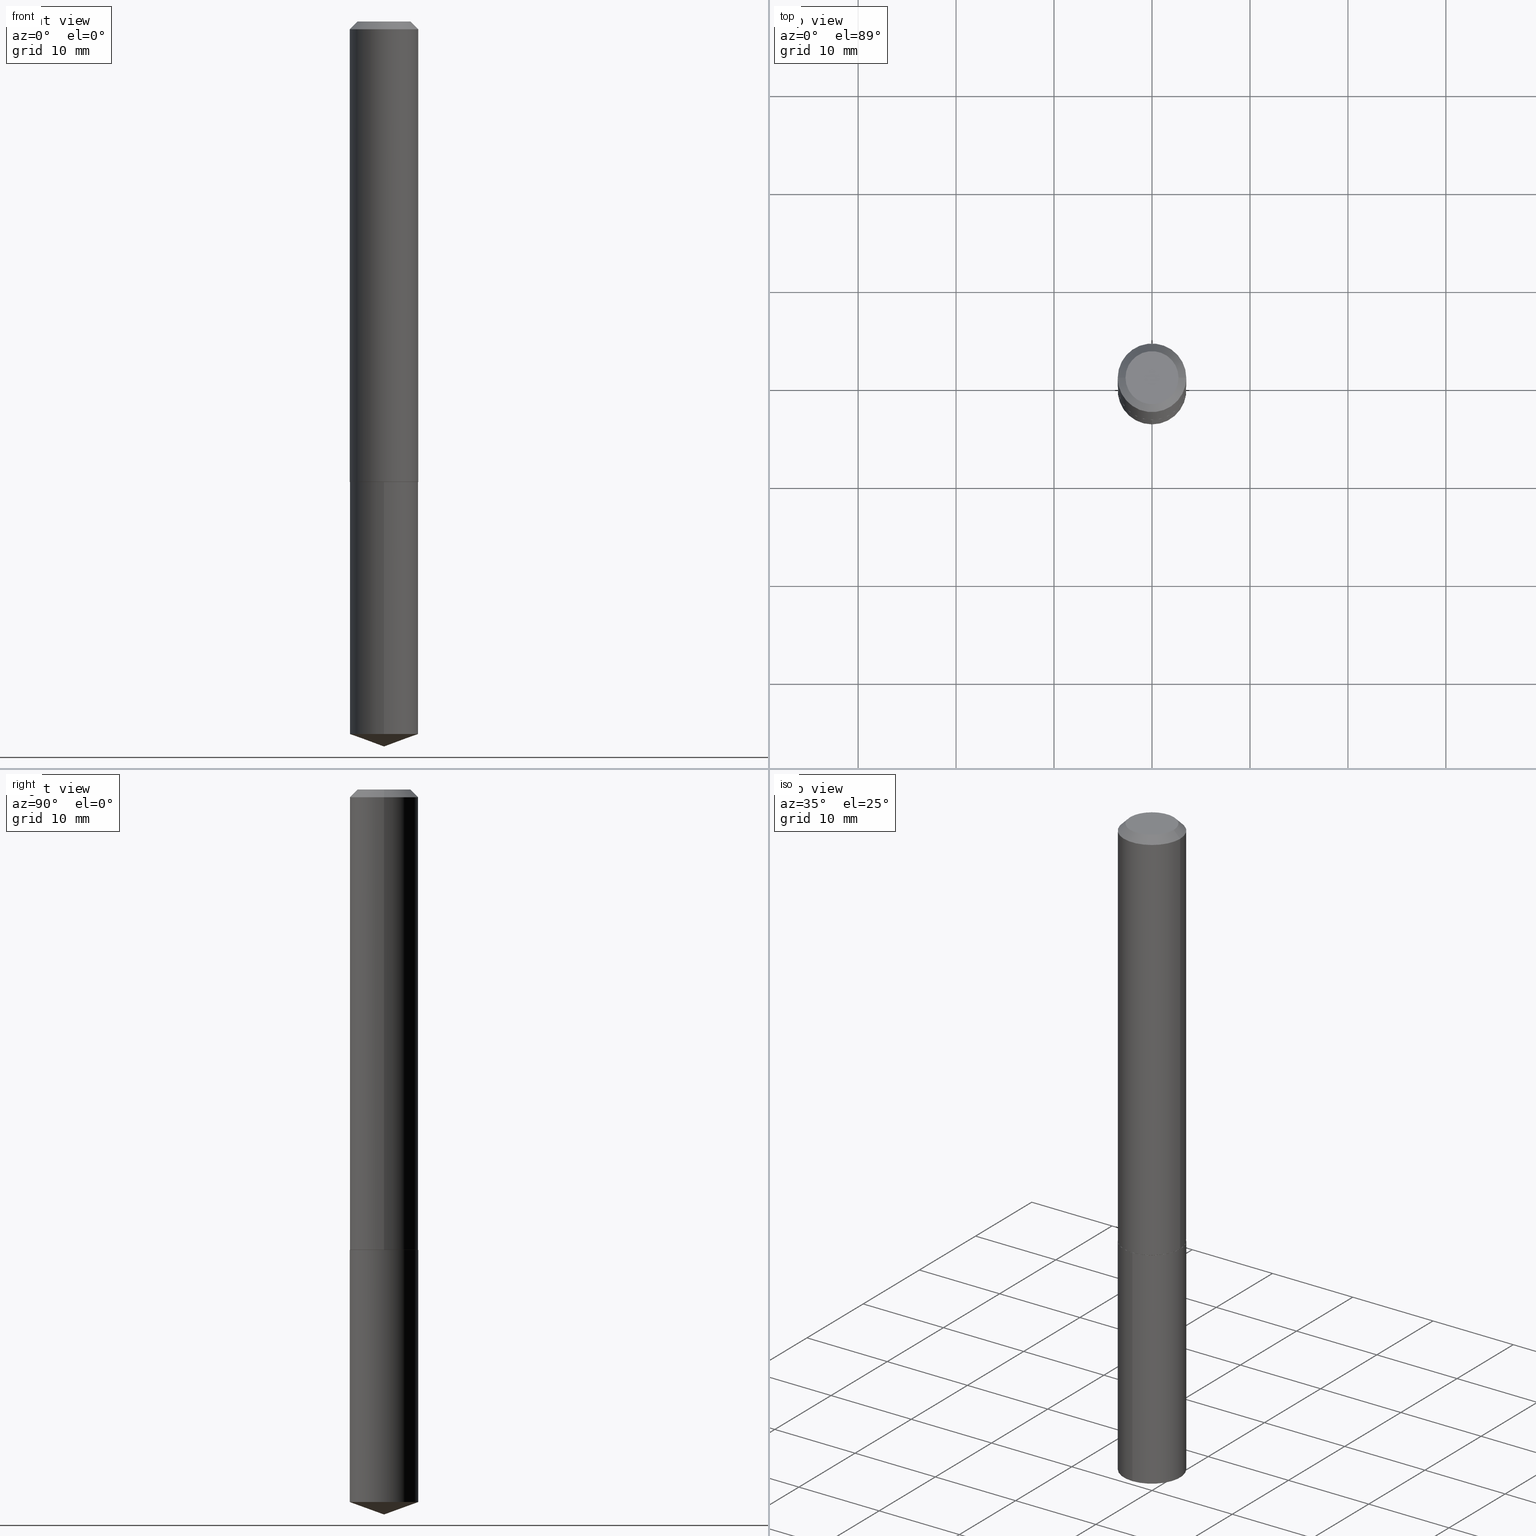
[diagram: canonical four-view strip — front | top / right | iso, engineering-drawing reading convention]
A machine part, canonical four-view strip (front | top / right | iso — engineering-drawing reading convention). The complete STEP part file that produces these views, byte-faithful:
ISO-10303-21;
HEADER;
FILE_DESCRIPTION (( 'STEP AP203' ),
    '1' );
FILE_NAME ('66024.STEP',
    '2024-04-23T12:17:47',
    ( '' ),
    ( '' ),
    'SwSTEP 2.0',
    'SolidWorks 2023',
    '' );
FILE_SCHEMA (( 'CONFIG_CONTROL_DESIGN' ));
ENDSEC;

DATA;
#1 = CIRCLE ( 'NONE', #181, 0.1378000000000000058 ) ;
#2 = CARTESIAN_POINT ( 'NONE',  ( 0.1378000000000001446, -9.622522569851684631E-16, 6.719371597046805543E-30 ) ) ;
#3 = PRODUCT_RELATED_PRODUCT_CATEGORY ( 'detail', '', ( #312 ) ) ;
#4 = CARTESIAN_POINT ( 'NONE',  ( 7.123037675848924175E-29, -1.017436034148602291E-14, -2.913400000000000212 ) ) ;
#5 = PLANE ( 'NONE',  #102 ) ;
#6 = DESIGN_CONTEXT ( 'detailed design', #246, 'design' ) ;
#7 = FACE_OUTER_BOUND ( 'NONE', #274, .T. ) ;
#8 = AXIS2_PLACEMENT_3D ( 'NONE', #244, #201, #329 ) ;
#9 = EDGE_CURVE ( 'NONE', #267, #35, #234, .T. ) ;
#10 = CARTESIAN_POINT ( 'NONE',  ( 9.791278898774879117E-16, 0.1377999999999900138, -2.863244901718118296 ) ) ;
#11 = ORIENTED_EDGE ( 'NONE', *, *, #320, .T. ) ;
#12 = ORIENTED_EDGE ( 'NONE', *, *, #157, .T. ) ;
#13 = VECTOR ( 'NONE', #237, 39.37007874015748143 ) ;
#14 = VERTEX_POINT ( 'NONE', #168 ) ;
#15 = VECTOR ( 'NONE', #228, 39.37007874015748143 ) ;
#16 = CONICAL_SURFACE ( 'NONE', #370, 0.1378000000000000058, 0.7853981633974450594 ) ;
#17 = PRODUCT_DEFINITION_FORMATION_WITH_SPECIFIED_SOURCE ( 'ANY', '', #312, .NOT_KNOWN. ) ;
#18 = APPROVAL_DATE_TIME ( #161, #179 ) ;
#19 = FACE_OUTER_BOUND ( 'NONE', #98, .T. ) ;
#20 = COORDINATED_UNIVERSAL_TIME_OFFSET ( 5, 0, .BEHIND. ) ;
#21 = EDGE_LOOP ( 'NONE', ( #371, #374, #327, #11 ) ) ;
#22 = ADVANCED_FACE ( 'NONE', ( #19 ), #346, .T. ) ;
#23 = CIRCLE ( 'NONE', #145, 0.1378000000000000058 ) ;
#24 = CALENDAR_DATE ( 2024, 23, 4 ) ;
#25 = DIRECTION ( 'NONE',  ( -2.445468806185136597E-29, 3.491481338843145583E-15, 1.000000000000000000 ) ) ;
#26 = APPROVAL_STATUS ( 'not_yet_approved' ) ;
#27 = FACE_OUTER_BOUND ( 'NONE', #73, .T. ) ;
#28 = ORIENTED_EDGE ( 'NONE', *, *, #217, .F. ) ;
#29 = CARTESIAN_POINT ( 'NONE',  ( 7.642090019328599159E-31, -1.091087918388489774E-16, -0.03125000000000019429 ) ) ;
#30 = CARTESIAN_POINT ( 'NONE',  ( 4.525095478964976833E-29, -6.460637069395356787E-15, -1.850400000000000045 ) ) ;
#31 = AXIS2_PLACEMENT_3D ( 'NONE', #359, #57, #174 ) ;
#32 = DIRECTION ( 'NONE',  ( -2.445468806185136597E-29, 3.491481338843145583E-15, 1.000000000000000000 ) ) ;
#33 = CC_DESIGN_DATE_AND_TIME_ASSIGNMENT ( #72, #257, ( #272 ) ) ;
#34 = FACE_OUTER_BOUND ( 'NONE', #70, .T. ) ;
#35 = VERTEX_POINT ( 'NONE', #172 ) ;
#36 = FACE_OUTER_BOUND ( 'NONE', #341, .T. ) ;
#37 = CARTESIAN_POINT ( 'NONE',  ( 0.1378000000000000058, -1.054485415931766154E-15, -0.03125000000000019429 ) ) ;
#38 = ADVANCED_FACE ( 'NONE', ( #266 ), #330, .T. ) ;
#39 = DIRECTION ( 'NONE',  ( -6.982962677686265922E-15, -1.000000000000000000, 3.964946289788480896E-15 ) ) ;
#40 = DIRECTION ( 'NONE',  ( 1.000000000000000000, -6.982962677686265922E-15, 4.876176775795935232E-29 ) ) ;
#41 = ORIENTED_EDGE ( 'NONE', *, *, #227, .F. ) ;
#42 = CC_DESIGN_PERSON_AND_ORGANIZATION_ASSIGNMENT ( #96, #97, ( #17 ) ) ;
#43 = ORIENTED_EDGE ( 'NONE', *, *, #71, .F. ) ;
#44 = ADVANCED_FACE ( 'NONE', ( #196 ), #389, .T. ) ;
#45 = DIRECTION ( 'NONE',  ( -2.444922659383854649E-29, 3.492263452147326166E-15, 1.000000000000000000 ) ) ;
#46 = APPROVAL_DATE_TIME ( #55, #252 ) ;
#47 = EDGE_LOOP ( 'NONE', ( #100, #212, #56, #154 ) ) ;
#48 = LINE ( 'NONE', #131, #149 ) ;
#49 = CARTESIAN_POINT ( 'NONE',  ( -0.1378000000000001446, 9.791278898774190835E-16, -6.778292554371267040E-30 ) ) ;
#50 = DIRECTION ( 'NONE',  ( -1.000000000000000000, 6.982962677686265922E-15, -4.876176775795935793E-29 ) ) ;
#51 = EDGE_CURVE ( 'NONE', #68, #170, #134, .T. ) ;
#52 = DATE_AND_TIME ( #186, #235 ) ;
#53 = ORIENTED_EDGE ( 'NONE', *, *, #204, .T. ) ;
#54 = VECTOR ( 'NONE', #344, 39.37007874015748854 ) ;
#55 = DATE_AND_TIME ( #387, #340 ) ;
#56 = ORIENTED_EDGE ( 'NONE', *, *, #238, .F. ) ;
#57 = DIRECTION ( 'NONE',  ( 2.445468806185136597E-29, -3.491481338843145583E-15, -1.000000000000000000 ) ) ;
#58 = EDGE_CURVE ( 'NONE', #267, #170, #311, .T. ) ;
#59 = DIRECTION ( 'NONE',  ( -2.444922659383854929E-29, 3.492263452147326560E-15, 1.000000000000000000 ) ) ;
#60 = CIRCLE ( 'NONE', #95, 0.1378000000000002279 ) ;
#61 = CC_DESIGN_APPROVAL ( #179, ( #138 ) ) ;
#62 = DIRECTION ( 'NONE',  ( -2.445468806185136597E-29, 3.491481338843145583E-15, 1.000000000000000000 ) ) ;
#63 = CARTESIAN_POINT ( 'NONE',  ( 7.001422929617015840E-29, -9.997758302359288598E-15, -2.863244901718117408 ) ) ;
#64 = DIRECTION ( 'NONE',  ( 1.000000000000000000, -6.982962677686267499E-15, 0.000000000000000000 ) ) ;
#65 = DIRECTION ( 'NONE',  ( 0.7071067811865452413, -7.319954787623248157E-15, -0.7071067811865497932 ) ) ;
#66 = DIRECTION ( 'NONE',  ( 0.000000000000000000, 0.000000000000000000, 1.000000000000000000 ) ) ;
#67 = AXIS2_PLACEMENT_3D ( 'NONE', #290, #258, #381 ) ;
#68 = VERTEX_POINT ( 'NONE', #112 ) ;
#69 = VECTOR ( 'NONE', #117, 39.37007874015748143 ) ;
#70 = EDGE_LOOP ( 'NONE', ( #355, #379, #358, #124 ) ) ;
#71 = EDGE_CURVE ( 'NONE', #170, #267, #60, .T. ) ;
#72 = DATE_AND_TIME ( #24, #75 ) ;
#73 = EDGE_LOOP ( 'NONE', ( #261, #152 ) ) ;
#74 = CARTESIAN_POINT ( 'NONE',  ( 4.523872744561884592E-29, -6.458891328725935284E-15, -1.849900000000000100 ) ) ;
#75 = LOCAL_TIME ( 8, 17, 47.00000000000000000, #185 ) ;
#76 = PERSON_AND_ORGANIZATION_ROLE ( 'creator' ) ;
#77 = ORIENTED_EDGE ( 'NONE', *, *, #58, .F. ) ;
#78 = CALENDAR_DATE ( 2024, 23, 4 ) ;
#79 = CARTESIAN_POINT ( 'NONE',  ( -0.1378000000000002279, -5.479763438848515411E-15, -1.849900000000000100 ) ) ;
#80 = DIRECTION ( 'NONE',  ( 1.000000000000000000, -6.982962677686269077E-15, 0.000000000000000000 ) ) ;
#81 = DIRECTION ( 'NONE',  ( -2.444922659383854929E-29, 3.492263452147326560E-15, 1.000000000000000000 ) ) ;
#82 = CARTESIAN_POINT ( 'NONE',  ( 4.523872744561884592E-29, -6.458891328725935284E-15, -1.849900000000000100 ) ) ;
#83 = LINE ( 'NONE', #240, #69 ) ;
#84 = LINE ( 'NONE', #365, #128 ) ;
#85 = VECTOR ( 'NONE', #317, 39.37007874015748143 ) ;
#86 = CC_DESIGN_PERSON_AND_ORGANIZATION_ASSIGNMENT ( #182, #158, ( #312 ) ) ;
#87 = APPROVAL_PERSON_ORGANIZATION ( #281, #252, #293 ) ;
#88 = DIRECTION ( 'NONE',  ( -6.982962677686265922E-15, -1.000000000000000000, 3.964946289788480896E-15 ) ) ;
#89 = DIRECTION ( 'NONE',  ( -2.445468806185136597E-29, 3.491481338843145583E-15, 1.000000000000000000 ) ) ;
#90 = DIRECTION ( 'NONE',  ( -2.444922659383854929E-29, 3.492263452147326560E-15, 1.000000000000000000 ) ) ;
#91 = AXIS2_PLACEMENT_3D ( 'NONE', #93, #66, #214 ) ;
#92 = ADVANCED_FACE ( 'NONE', ( #190 ), #279, .T. ) ;
#93 = CARTESIAN_POINT ( 'NONE',  ( 0.000000000000000000, 0.000000000000000000, 0.000000000000000000 ) ) ;
#94 = ADVANCED_FACE ( 'NONE', ( #225 ), #159, .T. ) ;
#95 = AXIS2_PLACEMENT_3D ( 'NONE', #74, #382, #80 ) ;
#96 = PERSON_AND_ORGANIZATION ( #280, #215 ) ;
#97 = PERSON_AND_ORGANIZATION_ROLE ( 'design_supplier' ) ;
#98 = EDGE_LOOP ( 'NONE', ( #336, #297, #43, #142 ) ) ;
#99 = ORIENTED_EDGE ( 'NONE', *, *, #283, .F. ) ;
#100 = ORIENTED_EDGE ( 'NONE', *, *, #71, .T. ) ;
#101 = DIRECTION ( 'NONE',  ( -6.982962677686265133E-15, -1.000000000000000000, 3.475157955500718636E-15 ) ) ;
#102 = AXIS2_PLACEMENT_3D ( 'NONE', #335, #232, #385 ) ;
#103 =( GEOMETRIC_REPRESENTATION_CONTEXT ( 3 ) GLOBAL_UNCERTAINTY_ASSIGNED_CONTEXT ( ( #208 ) ) GLOBAL_UNIT_ASSIGNED_CONTEXT ( ( #276, #245, #284 ) ) REPRESENTATION_CONTEXT ( 'NONE', 'WORKASPACE' ) );
#104 = CC_DESIGN_PERSON_AND_ORGANIZATION_ASSIGNMENT ( #226, #76, ( #272 ) ) ;
#105 = DIMENSIONAL_EXPONENTS ( 1.000000000000000000, 0.000000000000000000, 0.000000000000000000, 0.000000000000000000, 0.000000000000000000, 0.000000000000000000, 0.000000000000000000 ) ;
#106 = APPROVAL_DATE_TIME ( #319, #347 ) ;
#107 = ORIENTED_EDGE ( 'NONE', *, *, #153, .T. ) ;
#108 = ORIENTED_EDGE ( 'NONE', *, *, #217, .T. ) ;
#109 = DIRECTION ( 'NONE',  ( -2.445468806185136597E-29, 3.491481338843145583E-15, 1.000000000000000000 ) ) ;
#110 = ORIENTED_EDGE ( 'NONE', *, *, #135, .F. ) ;
#111 = ADVANCED_FACE ( 'NONE', ( #34 ), #120, .T. ) ;
#112 = CARTESIAN_POINT ( 'NONE',  ( 0.1373000000000003384, -7.419397845041683624E-15, -1.850400000000000045 ) ) ;
#113 = CIRCLE ( 'NONE', #199, 0.1378000000000000058 ) ;
#114 = CARTESIAN_POINT ( 'NONE',  ( -0.1065500000000000197, 7.985890692268953051E-16, 1.206277097154747981E-18 ) ) ;
#115 = CARTESIAN_POINT ( 'NONE',  ( 7.642090019328599159E-31, -1.091087918388489774E-16, -0.03125000000000019429 ) ) ;
#116 = EDGE_CURVE ( 'NONE', #220, #68, #262, .T. ) ;
#117 = DIRECTION ( 'NONE',  ( 6.676917655467970496E-15, 0.9396926207859099822, 0.3420201433256644941 ) ) ;
#118 = VECTOR ( 'NONE', #65, 39.37007874015748143 ) ;
#119 = DIRECTION ( 'NONE',  ( -2.445468806185136597E-29, 3.491481338843145583E-15, 1.000000000000000000 ) ) ;
#120 = CYLINDRICAL_SURFACE ( 'NONE', #250, 0.1378000000000001446 ) ;
#121 = DIRECTION ( 'NONE',  ( 1.000000000000000000, -6.982962677686267499E-15, 0.000000000000000000 ) ) ;
#122 = DIRECTION ( 'NONE',  ( -2.445468806185136597E-29, 3.491481338843145583E-15, 1.000000000000000000 ) ) ;
#123 = CIRCLE ( 'NONE', #286, 0.1373000000000003384 ) ;
#124 = ORIENTED_EDGE ( 'NONE', *, *, #320, .F. ) ;
#125 = EDGE_CURVE ( 'NONE', #170, #141, #144, .T. ) ;
#126 = VERTEX_POINT ( 'NONE', #206 ) ;
#127 = APPLICATION_PROTOCOL_DEFINITION ( 'international standard', 'config_control_design', 1994, #265 ) ;
#128 = VECTOR ( 'NONE', #243, 39.37007874015748143 ) ;
#129 = ADVANCED_BREP_SHAPE_REPRESENTATION ( '66024', ( #229, #373, #91 ), #103 ) ;
#130 = PERSON_AND_ORGANIZATION ( #280, #215 ) ;
#131 = CARTESIAN_POINT ( 'NONE',  ( 9.791278898774632598E-16, 0.1377999999999935665, -1.850400000000000489 ) ) ;
#132 = ORIENTED_EDGE ( 'NONE', *, *, #153, .F. ) ;
#133 = CARTESIAN_POINT ( 'NONE',  ( -2.949913012720684502E-47, 4.211693974208516178E-33, 1.206277097160141933E-18 ) ) ;
#134 = LINE ( 'NONE', #345, #356 ) ;
#135 = EDGE_CURVE ( 'NONE', #184, #309, #23, .T. ) ;
#136 = ORIENTED_EDGE ( 'NONE', *, *, #204, .F. ) ;
#137 = AXIS2_PLACEMENT_3D ( 'NONE', #367, #270, #362 ) ;
#138 = SECURITY_CLASSIFICATION ( '', '', #351 ) ;
#139 = DATE_TIME_ROLE ( 'classification_date' ) ;
#140 = ADVANCED_FACE ( 'NONE', ( #36 ), #5, .F. ) ;
#141 = VERTEX_POINT ( 'NONE', #198 ) ;
#142 = ORIENTED_EDGE ( 'NONE', *, *, #51, .F. ) ;
#143 = CARTESIAN_POINT ( 'NONE',  ( -0.1373000000000003384, -5.482412666022625823E-15, -1.850400000000000045 ) ) ;
#144 = LINE ( 'NONE', #2, #13 ) ;
#145 = AXIS2_PLACEMENT_3D ( 'NONE', #63, #176, #304 ) ;
#146 = DIRECTION ( 'NONE',  ( -1.000000000000000000, 6.982962677686267499E-15, 0.000000000000000000 ) ) ;
#147 = CARTESIAN_POINT ( 'NONE',  ( -9.622522569851223147E-16, -0.1378000000000064729, -1.850399999999999379 ) ) ;
#148 = DIRECTION ( 'NONE',  ( 1.000000000000000000, -6.982962677686266711E-15, 0.000000000000000000 ) ) ;
#149 = VECTOR ( 'NONE', #45, 39.37007874015748143 ) ;
#150 = DIRECTION ( 'NONE',  ( -2.444922659383854929E-29, 3.492263452147326560E-15, 1.000000000000000000 ) ) ;
#151 = CARTESIAN_POINT ( 'NONE',  ( 4.525095478964976833E-29, -6.460637069395356787E-15, -1.850400000000000045 ) ) ;
#152 = ORIENTED_EDGE ( 'NONE', *, *, #175, .T. ) ;
#153 = EDGE_CURVE ( 'NONE', #184, #366, #219, .T. ) ;
#154 = ORIENTED_EDGE ( 'NONE', *, *, #125, .F. ) ;
#155 = AXIS2_PLACEMENT_3D ( 'NONE', #350, #368, #178 ) ;
#156 = ORIENTED_EDGE ( 'NONE', *, *, #195, .F. ) ;
#157 = EDGE_CURVE ( 'NONE', #309, #14, #48, .T. ) ;
#158 = PERSON_AND_ORGANIZATION_ROLE ( 'design_owner' ) ;
#159 = CONICAL_SURFACE ( 'NONE', #155, 0.1378000000000002279, 0.7853981633974482790 ) ;
#160 = LOCAL_TIME ( 8, 17, 47.00000000000000000, #323 ) ;
#161 = DATE_AND_TIME ( #78, #303 ) ;
#162 = ADVANCED_FACE ( 'NONE', ( #27 ), #255, .F. ) ;
#163 = LINE ( 'NONE', #79, #54 ) ;
#164 = DIRECTION ( 'NONE',  ( -2.444922659383854929E-29, 3.492263452147326560E-15, 1.000000000000000000 ) ) ;
#165 = CARTESIAN_POINT ( 'NONE',  ( 7.642090019328599159E-31, -1.091087918388489774E-16, -0.03125000000000019429 ) ) ;
#166 = PERSON_AND_ORGANIZATION_ROLE ( 'classification_officer' ) ;
#167 = AXIS2_PLACEMENT_3D ( 'NONE', #30, #81, #291 ) ;
#168 = CARTESIAN_POINT ( 'NONE',  ( 9.791278898774883061E-16, 0.1377999999999935665, -1.850400000000000489 ) ) ;
#169 = CC_DESIGN_APPROVAL ( #347, ( #17 ) ) ;
#170 = VERTEX_POINT ( 'NONE', #188 ) ;
#171 = FACE_OUTER_BOUND ( 'NONE', #386, .T. ) ;
#172 = CARTESIAN_POINT ( 'NONE',  ( -0.1378000000000000058, -2.304872170404972320E-15, -0.03125000000000019429 ) ) ;
#173 = AXIS2_PLACEMENT_3D ( 'NONE', #177, #90, #39 ) ;
#174 = DIRECTION ( 'NONE',  ( -1.000000000000000000, 6.982962677686267499E-15, 0.000000000000000000 ) ) ;
#175 = EDGE_CURVE ( 'NONE', #231, #222, #316, .T. ) ;
#176 = DIRECTION ( 'NONE',  ( -2.444922659383854929E-29, 3.492263452147326560E-15, 1.000000000000000000 ) ) ;
#177 = CARTESIAN_POINT ( 'NONE',  ( 4.525095478964976833E-29, -6.460637069395356787E-15, -1.850400000000000045 ) ) ;
#178 = DIRECTION ( 'NONE',  ( 1.000000000000000000, -6.982962677686269077E-15, 0.000000000000000000 ) ) ;
#179 = APPROVAL ( #26, 'UNSPECIFIED' ) ;
#180 = AXIS2_PLACEMENT_3D ( 'NONE', #133, #230, #353 ) ;
#181 = AXIS2_PLACEMENT_3D ( 'NONE', #29, #62, #64 ) ;
#182 = PERSON_AND_ORGANIZATION ( #280, #215 ) ;
#183 = VECTOR ( 'NONE', #299, 39.37007874015748854 ) ;
#184 = VERTEX_POINT ( 'NONE', #378 ) ;
#185 = COORDINATED_UNIVERSAL_TIME_OFFSET ( 5, 0, .BEHIND. ) ;
#186 = CALENDAR_DATE ( 2024, 23, 4 ) ;
#187 = AXIS2_PLACEMENT_3D ( 'NONE', #331, #59, #301 ) ;
#188 = CARTESIAN_POINT ( 'NONE',  ( 0.1378000000000002279, -7.421143585711104338E-15, -1.849900000000000100 ) ) ;
#189 = APPROVAL_PERSON_ORGANIZATION ( #218, #179, #343 ) ;
#190 = FACE_OUTER_BOUND ( 'NONE', #263, .T. ) ;
#191 = PERSON_AND_ORGANIZATION ( #280, #215 ) ;
#192 = ORIENTED_EDGE ( 'NONE', *, *, #248, .F. ) ;
#193 = CARTESIAN_POINT ( 'NONE',  ( -9.622522569851223147E-16, -0.1378000000000064729, -1.850399999999999379 ) ) ;
#194 = EDGE_LOOP ( 'NONE', ( #156, #364, #202, #77 ) ) ;
#195 = EDGE_CURVE ( 'NONE', #220, #267, #163, .T. ) ;
#196 = FACE_OUTER_BOUND ( 'NONE', #277, .T. ) ;
#197 = CALENDAR_DATE ( 2024, 23, 4 ) ;
#198 = CARTESIAN_POINT ( 'NONE',  ( 0.1378000000000000058, -1.071361048824016578E-15, -0.03125000000000019429 ) ) ;
#199 = AXIS2_PLACEMENT_3D ( 'NONE', #115, #337, #121 ) ;
#200 = ORIENTED_EDGE ( 'NONE', *, *, #305, .F. ) ;
#201 = DIRECTION ( 'NONE',  ( 2.444922659383854649E-29, -3.492263452147326166E-15, -1.000000000000000000 ) ) ;
#202 = ORIENTED_EDGE ( 'NONE', *, *, #51, .T. ) ;
#203 = CYLINDRICAL_SURFACE ( 'NONE', #187, 0.1378000000000000058 ) ;
#204 = EDGE_CURVE ( 'NONE', #366, #14, #233, .T. ) ;
#205 = CARTESIAN_POINT ( 'NONE',  ( -2.949913012720684502E-47, 4.211693974208516178E-33, 1.206277097160141933E-18 ) ) ;
#206 = CARTESIAN_POINT ( 'NONE',  ( 7.123037675848923054E-29, -1.017436034148602291E-14, -2.913400000000000212 ) ) ;
#207 = AXIS2_PLACEMENT_3D ( 'NONE', #82, #296, #300 ) ;
#208 = UNCERTAINTY_MEASURE_WITH_UNIT (LENGTH_MEASURE( 1.000000000000000082E-05 ), #276, 'distance_accuracy_value', 'NONE');
#209 = CARTESIAN_POINT ( 'NONE',  ( 4.525095478964976833E-29, -6.460637069395356787E-15, -1.850400000000000045 ) ) ;
#210 = DIRECTION ( 'NONE',  ( 1.000000000000000000, -6.982962677686266711E-15, 4.876211711926274224E-29 ) ) ;
#211 = ADVANCED_FACE ( 'NONE', ( #321 ), #16, .T. ) ;
#212 = ORIENTED_EDGE ( 'NONE', *, *, #9, .T. ) ;
#213 = AXIS2_PLACEMENT_3D ( 'NONE', #318, #164, #101 ) ;
#214 = DIRECTION ( 'NONE',  ( 1.000000000000000000, 0.000000000000000000, 0.000000000000000000 ) ) ;
#215 = ORGANIZATION ( 'UNSPECIFIED', 'UNSPECIFIED', '' ) ;
#216 = APPROVAL_ROLE ( '' ) ;
#217 = EDGE_CURVE ( 'NONE', #126, #184, #306, .T. ) ;
#218 = PERSON_AND_ORGANIZATION ( #280, #215 ) ;
#219 = LINE ( 'NONE', #193, #85 ) ;
#220 = VERTEX_POINT ( 'NONE', #143 ) ;
#221 = COORDINATED_UNIVERSAL_TIME_OFFSET ( 5, 0, .BEHIND. ) ;
#222 = VERTEX_POINT ( 'NONE', #114 ) ;
#223 = AXIS2_PLACEMENT_3D ( 'NONE', #352, #25, #322 ) ;
#224 = CC_DESIGN_SECURITY_CLASSIFICATION ( #138, ( #17 ) ) ;
#225 = FACE_OUTER_BOUND ( 'NONE', #194, .T. ) ;
#226 = PERSON_AND_ORGANIZATION ( #280, #215 ) ;
#227 = EDGE_CURVE ( 'NONE', #222, #35, #84, .T. ) ;
#228 = DIRECTION ( 'NONE',  ( -2.445468806185136877E-29, 3.491481338843145188E-15, 1.000000000000000000 ) ) ;
#229 = MANIFOLD_SOLID_BREP ( 'Body-Move/Copy2[1]', #369 ) ;
#230 = DIRECTION ( 'NONE',  ( -2.445468806185136597E-29, 3.491481338843145583E-15, 1.000000000000000000 ) ) ;
#231 = VERTEX_POINT ( 'NONE', #236 ) ;
#232 = DIRECTION ( 'NONE',  ( -2.438088387897960049E-29, 3.491481338843145188E-15, 1.000000000000000000 ) ) ;
#233 = CIRCLE ( 'NONE', #67, 0.1378000000000000058 ) ;
#234 = LINE ( 'NONE', #49, #15 ) ;
#235 = LOCAL_TIME ( 8, 17, 47.00000000000000000, #20 ) ;
#236 = CARTESIAN_POINT ( 'NONE',  ( 0.1065500000000000197, -8.927357387971616206E-16, 1.206277097165864641E-18 ) ) ;
#237 = DIRECTION ( 'NONE',  ( -2.445468806185136877E-29, 3.491481338843145188E-15, 1.000000000000000000 ) ) ;
#238 = EDGE_CURVE ( 'NONE', #141, #35, #1, .T. ) ;
#239 =( LENGTH_UNIT ( ) NAMED_UNIT ( * ) SI_UNIT ( $, .METRE. ) );
#240 = CARTESIAN_POINT ( 'NONE',  ( 7.125076579294615798E-29, -1.017146589656991006E-14, -2.913400000000000212 ) ) ;
#241 = CIRCLE ( 'NONE', #384, 0.1065500000000000197 ) ;
#242 = ADVANCED_FACE ( 'NONE', ( #7 ), #348, .T. ) ;
#243 = DIRECTION ( 'NONE',  ( -0.7071067811865452413, 2.468850131082233000E-15, -0.7071067811865497932 ) ) ;
#244 = CARTESIAN_POINT ( 'NONE',  ( 4.525095478964976833E-29, -6.460637069395356787E-15, -1.850400000000000045 ) ) ;
#245 =( NAMED_UNIT ( * ) PLANE_ANGLE_UNIT ( ) SI_UNIT ( $, .RADIAN. ) );
#246 = APPLICATION_CONTEXT ( 'configuration controlled 3d designs of mechanical parts and assemblies' ) ;
#247 = CC_DESIGN_APPROVAL ( #252, ( #272 ) ) ;
#248 = EDGE_CURVE ( 'NONE', #14, #366, #302, .T. ) ;
#249 = PRODUCT_DEFINITION_SHAPE ( 'NONE', 'NONE',  #272 ) ;
#250 = AXIS2_PLACEMENT_3D ( 'NONE', #308, #89, #40 ) ;
#251 = APPROVAL_PERSON_ORGANIZATION ( #130, #347, #216 ) ;
#252 = APPROVAL ( #287, 'UNSPECIFIED' ) ;
#253 = PERSON_AND_ORGANIZATION_ROLE ( 'creator' ) ;
#254 = ORIENTED_EDGE ( 'NONE', *, *, #305, .T. ) ;
#255 = PLANE ( 'NONE',  #333 ) ;
#256 = CARTESIAN_POINT ( 'NONE',  ( 4.523872744561884592E-29, -6.458891328725935284E-15, -1.849900000000000100 ) ) ;
#257 = DATE_TIME_ROLE ( 'creation_date' ) ;
#258 = DIRECTION ( 'NONE',  ( -2.444922659383854929E-29, 3.492263452147326560E-15, 1.000000000000000000 ) ) ;
#259 = DIRECTION ( 'NONE',  ( 0.7071067811865474617, -2.468850131082256666E-15, 0.7071067811865474617 ) ) ;
#260 = EDGE_CURVE ( 'NONE', #222, #231, #241, .T. ) ;
#261 = ORIENTED_EDGE ( 'NONE', *, *, #260, .T. ) ;
#262 = CIRCLE ( 'NONE', #363, 0.1373000000000003384 ) ;
#263 = EDGE_LOOP ( 'NONE', ( #99, #108, #200 ) ) ;
#264 = ORIENTED_EDGE ( 'NONE', *, *, #310, .F. ) ;
#265 = APPLICATION_CONTEXT ( 'configuration controlled 3d designs of mechanical parts and assemblies' ) ;
#266 = FACE_OUTER_BOUND ( 'NONE', #47, .T. ) ;
#267 = VERTEX_POINT ( 'NONE', #307 ) ;
#268 = FACE_OUTER_BOUND ( 'NONE', #21, .T. ) ;
#269 = CONICAL_SURFACE ( 'NONE', #31, 0.1378000000000000058, 0.7853981633974450594 ) ;
#270 = DIRECTION ( 'NONE',  ( -2.444922659383854929E-29, 3.492263452147326560E-15, 1.000000000000000000 ) ) ;
#271 = LENGTH_MEASURE_WITH_UNIT ( LENGTH_MEASURE( 0.02539999999999999897 ), #239 );
#272 = PRODUCT_DEFINITION ( 'UNKNOWN', '', #17, #6 ) ;
#273 = DIRECTION ( 'NONE',  ( 2.445468806185136597E-29, -3.491481338843145583E-15, -1.000000000000000000 ) ) ;
#274 = EDGE_LOOP ( 'NONE', ( #28, #292, #110 ) ) ;
#275 = CARTESIAN_POINT ( 'NONE',  ( 7.001422929617015840E-29, -9.997758302359288598E-15, -2.863244901718117408 ) ) ;
#276 =( CONVERSION_BASED_UNIT ( 'INCH', #271 ) LENGTH_UNIT ( ) NAMED_UNIT ( #105 ) );
#277 = EDGE_LOOP ( 'NONE', ( #325, #254, #107, #192 ) ) ;
#278 = CC_DESIGN_PERSON_AND_ORGANIZATION_ASSIGNMENT ( #342, #166, ( #138 ) ) ;
#279 = CONICAL_SURFACE ( 'NONE', #213, 108.1684023407335076, 1.221730476396031717 ) ;
#280 = PERSON ( 'UNSPECIFIED', 'UNSPECIFIED', 'UNSPECIFIED', ('UNSPECIFIED'), ('UNSPECIFIED'), ('UNSPECIFIED') ) ;
#281 = PERSON_AND_ORGANIZATION ( #280, #215 ) ;
#282 = ORIENTED_EDGE ( 'NONE', *, *, #135, .T. ) ;
#283 = EDGE_CURVE ( 'NONE', #126, #309, #83, .T. ) ;
#284 =( NAMED_UNIT ( * ) SI_UNIT ( $, .STERADIAN. ) SOLID_ANGLE_UNIT ( ) );
#285 = EDGE_LOOP ( 'NONE', ( #377, #314, #288, #41 ) ) ;
#286 = AXIS2_PLACEMENT_3D ( 'NONE', #209, #32, #148 ) ;
#287 = APPROVAL_STATUS ( 'not_yet_approved' ) ;
#288 = ORIENTED_EDGE ( 'NONE', *, *, #238, .T. ) ;
#289 = APPROVAL_STATUS ( 'not_yet_approved' ) ;
#290 = CARTESIAN_POINT ( 'NONE',  ( 4.525095478964976833E-29, -6.460637069395356787E-15, -1.850400000000000045 ) ) ;
#291 = DIRECTION ( 'NONE',  ( -6.982962677686265922E-15, -1.000000000000000000, 3.964946289788480896E-15 ) ) ;
#292 = ORIENTED_EDGE ( 'NONE', *, *, #283, .T. ) ;
#293 = APPROVAL_ROLE ( '' ) ;
#294 = ORIENTED_EDGE ( 'NONE', *, *, #248, .T. ) ;
#295 = CIRCLE ( 'NONE', #375, 0.1378000000000000058 ) ;
#296 = DIRECTION ( 'NONE',  ( -2.445468806185136597E-29, 3.491481338843145583E-15, 1.000000000000000000 ) ) ;
#297 = ORIENTED_EDGE ( 'NONE', *, *, #195, .T. ) ;
#298 = CC_DESIGN_PERSON_AND_ORGANIZATION_ASSIGNMENT ( #191, #253, ( #17 ) ) ;
#299 = DIRECTION ( 'NONE',  ( -6.561838499445201640E-15, -0.9396926207859074287, 0.3420201433256709889 ) ) ;
#300 = DIRECTION ( 'NONE',  ( 1.000000000000000000, -6.982962677686269077E-15, 0.000000000000000000 ) ) ;
#301 = DIRECTION ( 'NONE',  ( -6.982962677686265922E-15, -1.000000000000000000, 3.964946289788480896E-15 ) ) ;
#302 = CIRCLE ( 'NONE', #173, 0.1378000000000000058 ) ;
#303 = LOCAL_TIME ( 8, 17, 47.00000000000000000, #221 ) ;
#304 = DIRECTION ( 'NONE',  ( -6.982962677686265922E-15, -1.000000000000000000, 3.964946289788480896E-15 ) ) ;
#305 = EDGE_CURVE ( 'NONE', #309, #184, #295, .T. ) ;
#306 = LINE ( 'NONE', #4, #183 ) ;
#307 = CARTESIAN_POINT ( 'NONE',  ( -0.1378000000000002279, -5.479763438848515411E-15, -1.849900000000000100 ) ) ;
#308 = CARTESIAN_POINT ( 'NONE',  ( 0.000000000000000000, 0.000000000000000000, 0.000000000000000000 ) ) ;
#309 = VERTEX_POINT ( 'NONE', #10 ) ;
#310 = EDGE_CURVE ( 'NONE', #68, #220, #123, .T. ) ;
#311 = CIRCLE ( 'NONE', #339, 0.1378000000000002279 ) ;
#312 = PRODUCT ( '66024', '66024', '', ( #338 ) ) ;
#313 = APPLICATION_PROTOCOL_DEFINITION ( 'international standard', 'config_control_design', 1994, #246 ) ;
#314 = ORIENTED_EDGE ( 'NONE', *, *, #328, .T. ) ;
#315 = CC_DESIGN_DATE_AND_TIME_ASSIGNMENT ( #52, #139, ( #138 ) ) ;
#316 = CIRCLE ( 'NONE', #180, 0.1065500000000000197 ) ;
#317 = DIRECTION ( 'NONE',  ( -2.444922659383854649E-29, 3.492263452147326166E-15, 1.000000000000000000 ) ) ;
#318 = CARTESIAN_POINT ( 'NONE',  ( -8.913274934764757544E-28, 1.273177739733864747E-13, 36.45667874015747856 ) ) ;
#319 = DATE_AND_TIME ( #197, #160 ) ;
#320 = EDGE_CURVE ( 'NONE', #35, #141, #113, .T. ) ;
#321 = FACE_OUTER_BOUND ( 'NONE', #285, .T. ) ;
#322 = DIRECTION ( 'NONE',  ( 1.000000000000000000, -6.982962677686265922E-15, 4.876176775795935232E-29 ) ) ;
#323 = COORDINATED_UNIVERSAL_TIME_OFFSET ( 5, 0, .BEHIND. ) ;
#324 = EDGE_LOOP ( 'NONE', ( #53, #294 ) ) ;
#325 = ORIENTED_EDGE ( 'NONE', *, *, #157, .F. ) ;
#326 = SHAPE_DEFINITION_REPRESENTATION ( #249, #129 ) ;
#327 = ORIENTED_EDGE ( 'NONE', *, *, #227, .T. ) ;
#328 = EDGE_CURVE ( 'NONE', #231, #141, #334, .T. ) ;
#329 = DIRECTION ( 'NONE',  ( 6.982962677686265922E-15, 1.000000000000000000, -3.492263452147326166E-15 ) ) ;
#330 = CYLINDRICAL_SURFACE ( 'NONE', #223, 0.1378000000000001446 ) ;
#331 = CARTESIAN_POINT ( 'NONE',  ( 4.525095478964976833E-29, -6.460637069395356787E-15, -1.850400000000000045 ) ) ;
#332 = FACE_OUTER_BOUND ( 'NONE', #324, .T. ) ;
#333 = AXIS2_PLACEMENT_3D ( 'NONE', #357, #388, #50 ) ;
#334 = LINE ( 'NONE', #37, #118 ) ;
#335 = CARTESIAN_POINT ( 'NONE',  ( 7.096031883308833107E-29, -2.778909809762185319E-15, -1.850400000000000045 ) ) ;
#336 = ORIENTED_EDGE ( 'NONE', *, *, #310, .T. ) ;
#337 = DIRECTION ( 'NONE',  ( -2.445468806185136597E-29, 3.491481338843145583E-15, 1.000000000000000000 ) ) ;
#338 = MECHANICAL_CONTEXT ( 'NONE', #265, 'mechanical' ) ;
#339 = AXIS2_PLACEMENT_3D ( 'NONE', #256, #109, #390 ) ;
#340 = LOCAL_TIME ( 8, 17, 47.00000000000000000, #376 ) ;
#341 = EDGE_LOOP ( 'NONE', ( #264, #349 ) ) ;
#342 = PERSON_AND_ORGANIZATION ( #280, #215 ) ;
#343 = APPROVAL_ROLE ( '' ) ;
#344 = DIRECTION ( 'NONE',  ( -0.7071067811865474617, 7.493145998870352582E-15, 0.7071067811865474617 ) ) ;
#345 = CARTESIAN_POINT ( 'NONE',  ( 0.1378000000000002279, -7.421143585711104338E-15, -1.849900000000000100 ) ) ;
#346 = CONICAL_SURFACE ( 'NONE', #207, 0.1378000000000002279, 0.7853981633974482790 ) ;
#347 = APPROVAL ( #289, 'UNSPECIFIED' ) ;
#348 = CONICAL_SURFACE ( 'NONE', #137, 108.1684023407335076, 1.221730476396031717 ) ;
#349 = ORIENTED_EDGE ( 'NONE', *, *, #116, .F. ) ;
#350 = CARTESIAN_POINT ( 'NONE',  ( 4.523872744561884592E-29, -6.458891328725935284E-15, -1.849900000000000100 ) ) ;
#351 = SECURITY_CLASSIFICATION_LEVEL ( 'unclassified' ) ;
#352 = CARTESIAN_POINT ( 'NONE',  ( 0.000000000000000000, 0.000000000000000000, 0.000000000000000000 ) ) ;
#353 = DIRECTION ( 'NONE',  ( 1.000000000000000000, -6.982962677686266711E-15, 4.876211711926274224E-29 ) ) ;
#354 = ADVANCED_FACE ( 'NONE', ( #332 ), #360, .F. ) ;
#355 = ORIENTED_EDGE ( 'NONE', *, *, #9, .F. ) ;
#356 = VECTOR ( 'NONE', #259, 39.37007874015748854 ) ;
#357 = CARTESIAN_POINT ( 'NONE',  ( -1.474956506360342251E-47, 2.105846987104258089E-33, 6.031385485800709664E-19 ) ) ;
#358 = ORIENTED_EDGE ( 'NONE', *, *, #125, .T. ) ;
#359 = CARTESIAN_POINT ( 'NONE',  ( 7.642090019328599159E-31, -1.091087918388489774E-16, -0.03125000000000019429 ) ) ;
#360 = PLANE ( 'NONE',  #8 ) ;
#361 = DIRECTION ( 'NONE',  ( 1.000000000000000000, -6.982962677686266711E-15, 0.000000000000000000 ) ) ;
#362 = DIRECTION ( 'NONE',  ( -6.982962677686265133E-15, -1.000000000000000000, 3.475157955500718636E-15 ) ) ;
#363 = AXIS2_PLACEMENT_3D ( 'NONE', #151, #122, #361 ) ;
#364 = ORIENTED_EDGE ( 'NONE', *, *, #116, .T. ) ;
#365 = CARTESIAN_POINT ( 'NONE',  ( -0.1378000000000000058, 8.531434651463186722E-16, -0.03125000000000019429 ) ) ;
#366 = VERTEX_POINT ( 'NONE', #147 ) ;
#367 = CARTESIAN_POINT ( 'NONE',  ( -8.913274934764757544E-28, 1.273177739733864747E-13, 36.45667874015747856 ) ) ;
#368 = DIRECTION ( 'NONE',  ( -2.445468806185136597E-29, 3.491481338843145583E-15, 1.000000000000000000 ) ) ;
#369 = CLOSED_SHELL ( 'NONE', ( #380, #242, #92, #44, #354 ) ) ;
#370 = AXIS2_PLACEMENT_3D ( 'NONE', #165, #273, #146 ) ;
#371 = ORIENTED_EDGE ( 'NONE', *, *, #328, .F. ) ;
#372 = ADVANCED_FACE ( 'NONE', ( #268 ), #269, .T. ) ;
#373 = MANIFOLD_SOLID_BREP ( 'Body-Move/Copy2[2]', #383 ) ;
#374 = ORIENTED_EDGE ( 'NONE', *, *, #260, .F. ) ;
#375 = AXIS2_PLACEMENT_3D ( 'NONE', #275, #150, #88 ) ;
#376 = COORDINATED_UNIVERSAL_TIME_OFFSET ( 5, 0, .BEHIND. ) ;
#377 = ORIENTED_EDGE ( 'NONE', *, *, #175, .F. ) ;
#378 = CARTESIAN_POINT ( 'NONE',  ( -9.622522569850974656E-16, -0.1378000000000099978, -2.863244901718116964 ) ) ;
#379 = ORIENTED_EDGE ( 'NONE', *, *, #58, .T. ) ;
#380 = ADVANCED_FACE ( 'NONE', ( #171 ), #203, .T. ) ;
#381 = DIRECTION ( 'NONE',  ( -6.982962677686265922E-15, -1.000000000000000000, 3.964946289788480896E-15 ) ) ;
#382 = DIRECTION ( 'NONE',  ( -2.445468806185136597E-29, 3.491481338843145583E-15, 1.000000000000000000 ) ) ;
#383 = CLOSED_SHELL ( 'NONE', ( #211, #38, #22, #140, #94, #111, #372, #162 ) ) ;
#384 = AXIS2_PLACEMENT_3D ( 'NONE', #205, #119, #210 ) ;
#385 = DIRECTION ( 'NONE',  ( 1.000000000000000000, -6.982962677686265922E-15, 4.876176775795935793E-29 ) ) ;
#386 = EDGE_LOOP ( 'NONE', ( #282, #12, #136, #132 ) ) ;
#387 = CALENDAR_DATE ( 2024, 23, 4 ) ;
#388 = DIRECTION ( 'NONE',  ( 2.438088387897960049E-29, -3.491481338843145188E-15, -1.000000000000000000 ) ) ;
#389 = CYLINDRICAL_SURFACE ( 'NONE', #167, 0.1378000000000000058 ) ;
#390 = DIRECTION ( 'NONE',  ( 1.000000000000000000, -6.982962677686269077E-15, 0.000000000000000000 ) ) ;
ENDSEC;
END-ISO-10303-21;
